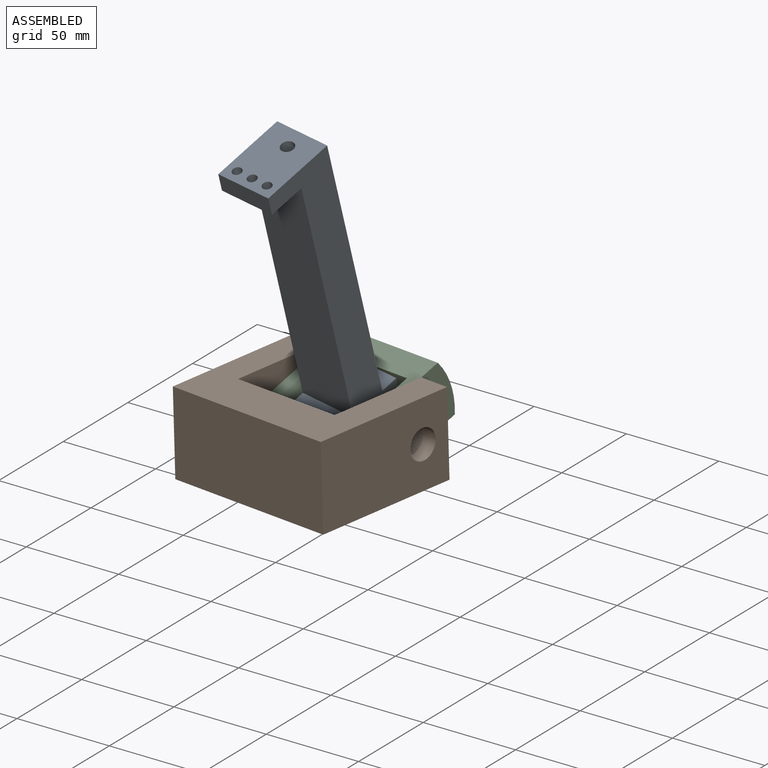
[diagram: assembled view]
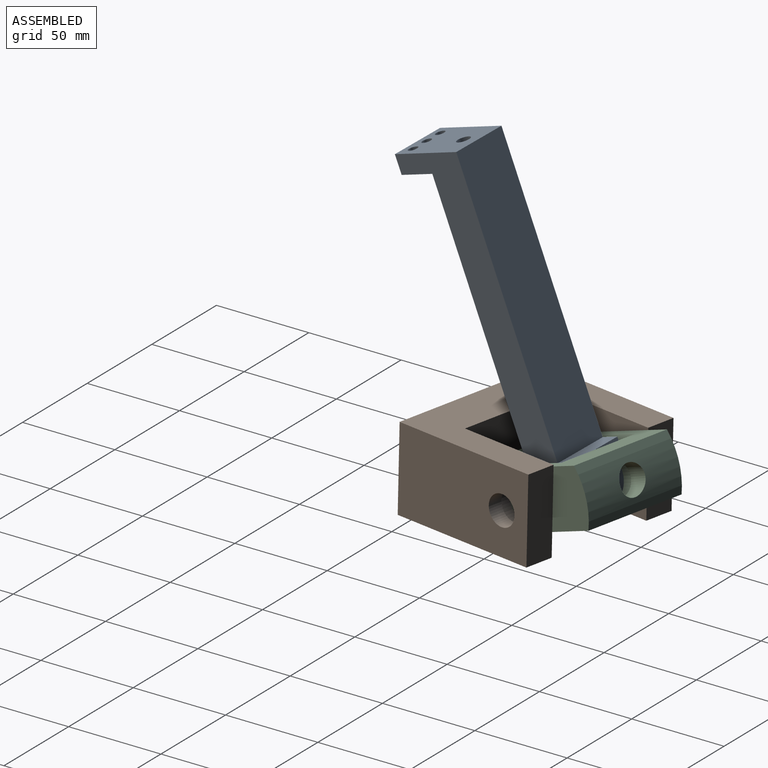
[diagram: assembled view, second angle]
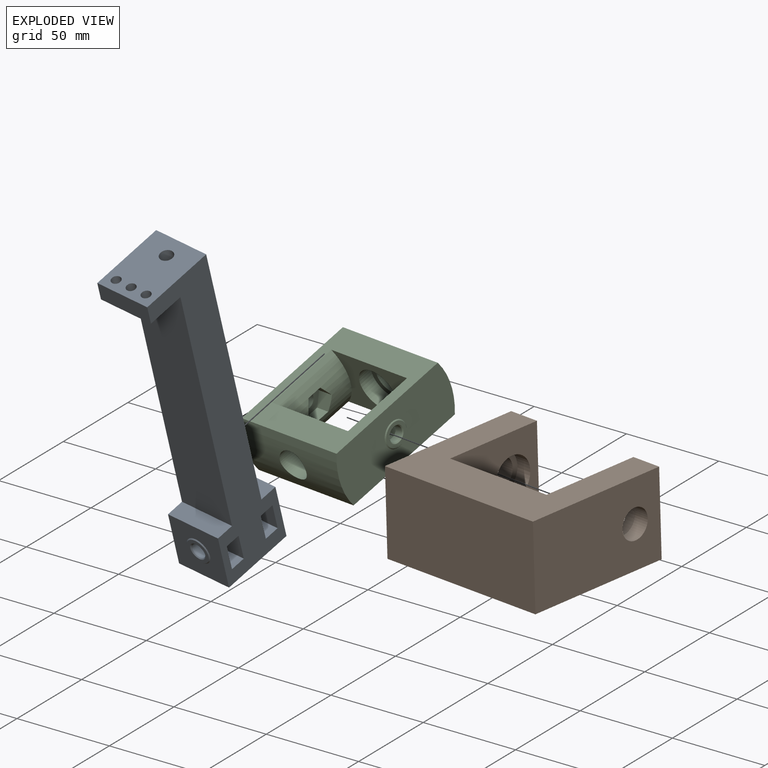
[diagram: exploded view]
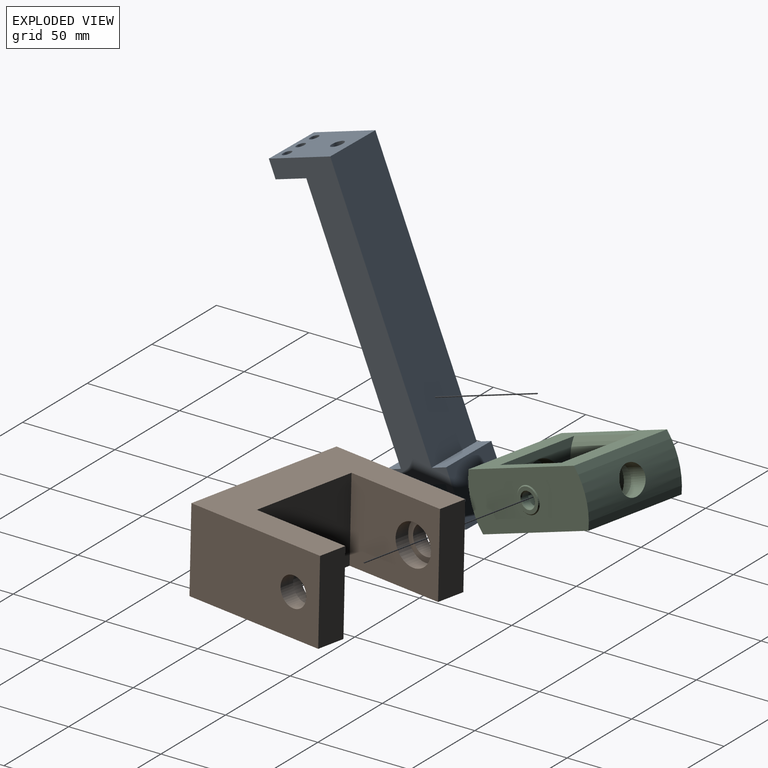
[diagram: exploded view, second angle]
ASSEMBLY  parts=3 mates=2
PART A: 40 faces, bbox 30x50x180 mm
  f0: plane 140x30mm, normal (0,-1,0), area 4200mm2, adj f3,f5,f7,f36
  f1: plane 30x9.5mm, normal (0,0,1), area 285mm2, adj f3,f4,f5,f33
  f2: cylinder r=3.25mm len=6.5mm, axis (0,0,1), area 40.8mm2, adj f8,f30
  f3: plane 180x49.5mm, normal (1,0,0), area 4146mm2, adj f0,f1,f4,f6,f7,f8,f9,f12
  f4: plane 30x30mm, normal (0,1,0), area 746.1mm2, adj f1,f3,f5,f8,f25
  f5: plane 180x49.5mm, normal (-1,0,0), area 4370mm2, adj f0,f1,f4,f6,f7,f8,f33,f34
  f6: plane 30x30mm, normal (0,-1,0), area 746.1mm2, adj f3,f5,f7,f8,f28
  f7: plane 30x9.5mm, normal (0,0,1), area 285mm2, adj f0,f3,f5,f6
  f8: plane 39x30mm, normal (0,0,-1), area 1136.8mm2, adj f2,f3,f4,f5,f6
  f9: plane 19.04x8mm, normal (0,0,1), area 152.3mm2, adj f3,f10,f13,f14
  f10: plane 8x7mm, normal (0.87,0,0.5), area 64.7mm2, adj f9,f11,f13,f14
  f11: plane 8x7mm, normal (0.87,0,-0.5), area 64.7mm2, adj f10,f12,f13,f14
  f12: plane 19.04x8mm, normal (0,0,-1), area 152.3mm2, adj f3,f11,f13,f14
  f13: plane 23.08x14mm, normal (0,1,0), area 244.6mm2, adj f3,f9,f10,f11,f12,f22
  f14: plane 23.08x14mm, normal (0,-1,0), area 244.6mm2, adj f3,f9,f10,f11,f12,f23
  f15: plane 19.04x8mm, normal (0,0,-1), area 152.3mm2, adj f3,f16,f19,f20
  f16: plane 8x7mm, normal (0.87,0,-0.5), area 64.7mm2, adj f15,f17,f19,f20
  f17: plane 8x7mm, normal (0.87,0,0.5), area 64.7mm2, adj f16,f18,f19,f20
  f18: plane 19.04x8mm, normal (0,0,1), area 152.3mm2, adj f3,f17,f19,f20
  f19: plane 23.08x14mm, normal (0,-1,0), area 244.6mm2, adj f3,f15,f16,f17,f18,f22
  f20: plane 23.08x14mm, normal (0,1,0), area 244.6mm2, adj f3,f15,f16,f17,f18,f21
  f21: cylinder r=4mm len=8mm, axis (0,1,0), area 100.5mm2, adj f20,f27
  f22: cylinder r=4mm len=15mm, axis (0,1,0), area 288.9mm2, adj f13,f19,f31,f32
  f23: cylinder r=4mm len=8mm, axis (0,1,0), area 100.5mm2, adj f14,f24
  f24: cone r=4mm half-angle=45deg, axis (0,1,0), area 18.9mm2, adj f23,f26
  f25: cone r=7mm half-angle=45deg, axis (0,-1,0), area 30mm2, adj f4,f26
  f26: plane 13x13mm, normal (0,1,0), area 69.1mm2, adj f24,f25
  f27: cone r=4mm half-angle=45deg, axis (0,-1,0), area 18.9mm2, adj f21,f29
  f28: cone r=7mm half-angle=45deg, axis (0,1,0), area 30mm2, adj f6,f29
  f29: plane 13x13mm, normal (0,-1,0), area 69.1mm2, adj f27,f28
  f30: plane 7x7mm, normal (0,0,1), area 5.3mm2, adj f2,f31
  f31: cylinder r=3.5mm len=11.06mm, axis (0,0,1), area 218.6mm2, adj f22,f30
  f32: cylinder r=3.5mm len=163.06mm, axis (0,0,1), area 3561.3mm2, adj f22,f34
  f33: plane 150x30mm, normal (0,1,0), area 4500mm2, adj f1,f3,f5,f34
  f34: plane 40x30mm, normal (0,0,1), area 1102.6mm2, adj f3,f5,f32,f33,f35,f37,f38,f39
  f35: plane 30x10mm, normal (0,-1,0), area 300mm2, adj f3,f5,f34,f36
  f36: plane 30x20mm, normal (0,0,-1), area 541.1mm2, adj f0,f3,f5,f35,f37,f38,f39
  f37: cylinder r=2.5mm len=10mm, axis (0,0,-1), area 157.1mm2, adj f34,f36
  f38: cylinder r=2.5mm len=10mm, axis (0,0,-1), area 157.1mm2, adj f34,f36
  f39: cylinder r=2.5mm len=10mm, axis (0,0,-1), area 157.1mm2, adj f34,f36
PART B: 16 faces, bbox 92x80x45 mm
  f0: plane 55x45mm, normal (1,0,0), area 2094.9mm2, adj f1,f7,f8,f9,f10
  f1: plane 45x16mm, normal (0,1,0), area 720mm2, adj f0,f2,f8,f9
  f2: plane 80x45mm, normal (-1,0,0), area 3398.9mm2, adj f1,f3,f8,f9,f15
  f3: plane 92x45mm, normal (0,-1,0), area 4140mm2, adj f2,f4,f8,f9
  f4: plane 80x45mm, normal (1,0,0), area 3398.9mm2, adj f3,f5,f8,f9,f14
  f5: plane 45x16mm, normal (0,1,0), area 720mm2, adj f4,f6,f8,f9
  f6: plane 55x45mm, normal (-1,0,0), area 2094.9mm2, adj f5,f7,f8,f9,f12
  f7: plane 60x45mm, normal (0,1,0), area 2700mm2, adj f0,f6,f8,f9
  f8: plane 92x80mm, normal (0,0,1), area 4060mm2, adj f0,f1,f2,f3,f4,f5,f6,f7
  f9: plane 92x80mm, normal (0,0,-1), area 4060mm2, adj f0,f1,f2,f3,f4,f5,f6,f7
  f10: cylinder r=11mm len=22mm, axis (1,0,0), area 552.9mm2, adj f0,f11
  f11: plane 22x22mm, normal (1,0,0), area 179.1mm2, adj f10,f15
  f12: cylinder r=11mm len=22mm, axis (-1,0,0), area 552.9mm2, adj f6,f13
  f13: plane 22x22mm, normal (-1,0,0), area 179.1mm2, adj f12,f14
  f14: cylinder r=8mm len=16mm, axis (1,0,0), area 402.1mm2, adj f4,f13
  f15: cylinder r=8mm len=16mm, axis (1,0,0), area 402.1mm2, adj f2,f11
PART C: 38 faces, bbox 60.1x75.1x30.1 mm
  f0: plane 75x30mm, normal (-1,0,0), area 2034.5mm2, adj f4,f5,f30,f31,f36
  f1: plane 75x30mm, normal (1,0,0), area 2034.5mm2, adj f4,f5,f30,f31,f33
  f2: cylinder r=21.75mm len=40mm, axis (0,1,0), area 1151.3mm2, adj f4,f5,f7,f8,f16,f17,f18,f19
  f3: cylinder r=4mm len=8mm, axis (1,0,0), area 100.5mm2, adj f22,f35
  f4: plane 68.74x59mm, normal (0,0,1), area 2175.6mm2, adj f0,f1,f2,f6,f7,f8,f30,f31
  f5: plane 68.74x59mm, normal (0,0,-1), area 2175.6mm2, adj f0,f1,f2,f6,f7,f8,f30,f31
  f6: cylinder r=21.75mm len=40mm, axis (0,1,0), area 1151.3mm2, adj f4,f5,f7,f8,f24,f25,f26,f27
  f7: plane 47x30mm, normal (0,1,0), area 782.4mm2, adj f2,f4,f5,f6,f12
  f8: plane 47x30mm, normal (0,-1,0), area 782.4mm2, adj f2,f4,f5,f6,f10
  f9: plane 22x22mm, normal (0,-1,0), area 179.1mm2, adj f10,f14
  f10: cylinder r=11mm len=22mm, axis (0,1,0), area 552.9mm2, adj f8,f9
  f11: plane 22x22mm, normal (0,1,0), area 179.1mm2, adj f12,f13
  f12: cylinder r=11mm len=22mm, axis (0,1,0), area 552.9mm2, adj f7,f11
  f13: cylinder r=8mm len=16mm, axis (0,1,0), area 455.9mm2, adj f11,f31
  f14: cylinder r=8mm len=16mm, axis (0,1,0), area 455.9mm2, adj f9,f30
  f15: cylinder r=4mm len=8mm, axis (1,0,0), area 100.5mm2, adj f23,f32
  f16: plane 8.06x7.06mm, normal (0,0.87,-0.5), area 61.6mm2, adj f2,f17,f19,f22
  f17: plane 8.06x7.06mm, normal (0,0.87,0.5), area 61.6mm2, adj f2,f16,f18,f22
  f18: plane 8.08x6.84mm, normal (0,0,1), area 55.3mm2, adj f2,f17,f20,f22
  f19: plane 8.08x6.84mm, normal (0,0,-1), area 55.3mm2, adj f2,f16,f21,f22
  f20: plane 8.06x7.06mm, normal (0,-0.87,0.5), area 61.6mm2, adj f2,f18,f21,f22
  f21: plane 8.06x7.06mm, normal (0,-0.87,-0.5), area 61.6mm2, adj f2,f19,f20,f22
  f22: plane 16.17x14mm, normal (1,0,0), area 119.5mm2, adj f3,f16,f17,f18,f19,f20,f21
  f23: plane 16.17x14mm, normal (-1,0,0), area 119.5mm2, adj f15,f24,f25,f26,f27,f28,f29
  f24: plane 8.06x7.06mm, normal (0,0.87,-0.5), area 61.6mm2, adj f6,f23,f25,f28
  f25: plane 8.06x7.06mm, normal (0,0.87,0.5), area 61.6mm2, adj f6,f23,f24,f26
  f26: plane 8.08x6.84mm, normal (0,0,1), area 55.3mm2, adj f6,f23,f25,f27
  f27: plane 8.06x7.06mm, normal (0,-0.87,0.5), area 61.6mm2, adj f6,f23,f26,f29
  f28: plane 8.08x6.84mm, normal (0,0,-1), area 55.3mm2, adj f6,f23,f24,f29
  f29: plane 8.06x7.06mm, normal (0,-0.87,-0.5), area 61.6mm2, adj f6,f23,f27,f28
  f30: cylinder r=37.5mm len=59mm, axis (1,0,0), area 1618.8mm2, adj f0,f1,f4,f5,f14
  f31: cylinder r=37.5mm len=59mm, axis (1,0,0), area 1618.7mm2, adj f0,f1,f4,f5,f13
  f32: cone r=4mm half-angle=45deg, axis (1,0,0), area 18.9mm2, adj f15,f34
  f33: cone r=7mm half-angle=45deg, axis (-1,0,0), area 30mm2, adj f1,f34
  f34: plane 13x13mm, normal (1,0,0), area 69.1mm2, adj f32,f33
  f35: cone r=4mm half-angle=45deg, axis (-1,0,0), area 18.9mm2, adj f3,f37
  f36: cone r=7mm half-angle=45deg, axis (1,0,0), area 30mm2, adj f0,f37
  f37: plane 13x13mm, normal (-1,0,0), area 69.1mm2, adj f35,f36
PLACE A rot(axis=(0.92,0.17,-0.37),21.5deg) t=(-100.2,29.18,-29.7)mm
PLACE B rot(axis=(0.01,-0.19,-0.98),9.6deg) t=(-100.17,27.8,-21.83)mm
PLACE C rot(axis=(0.89,-0.16,-0.42),21.4deg) t=(-100.2,29.18,-29.7)mm
MATE revolute B.f10 <-> C.f3  axis (0.99,-0.16,0.03) through (-125.81,56.4,-22.67)mm
MATE revolute C.f10 <-> A.f21  axis (0.14,0.93,0.33) through (-99.62,32.91,-28.37)mm
